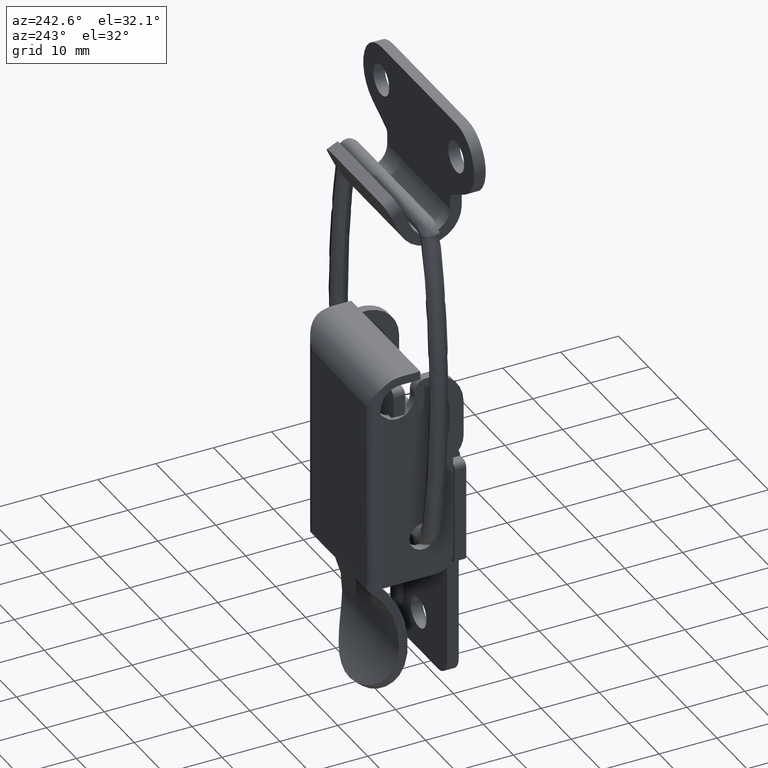
[diagram: clean part render]
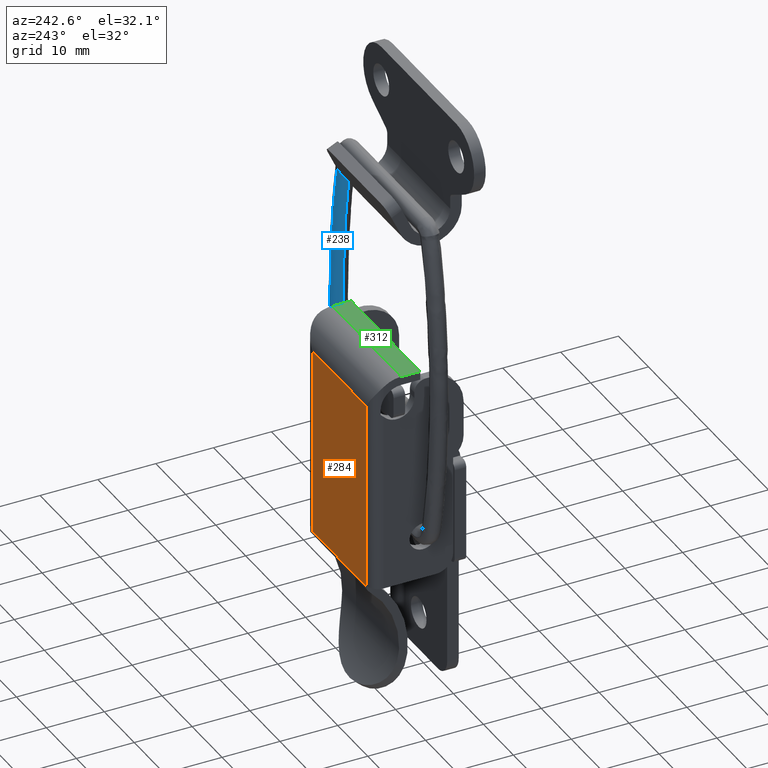
[diagram: same view with three faces highlighted in distinct colors, each labeled with its STEP entity id]
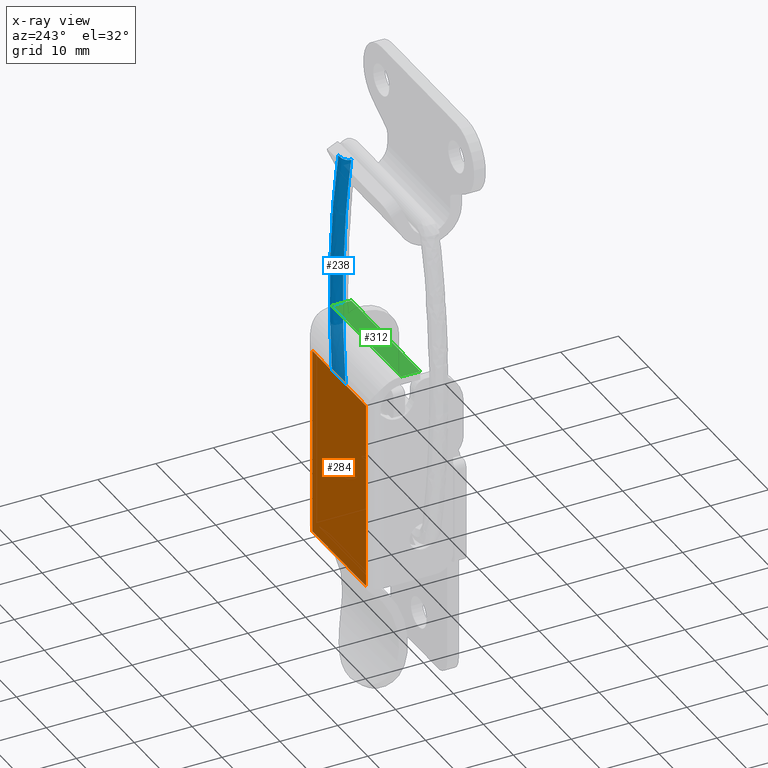
[diagram: x-ray of the same camera — body ghosted, the three highlighted faces saturated]
A machine part, auxiliary view with three faces highlighted in distinct colors.
The next image is the same camera in x-ray (body ghosted, the three faces saturated) — at least one of them is partly hidden behind the body in this view.
Their STEP definitions:

[orange] entity #284 — the highlighted planar face has unit normal (0, -1, 0).
#284=ADVANCED_FACE('',(#1319),#1318,.F.);
#1318=PLANE('',#2525);
#1319=FACE_OUTER_BOUND('',#2526,.T.);
#2522=CARTESIAN_POINT('',(8.79999999996E+00,1.20000000000E+00,-1.09420433278E+01));
#2523=DIRECTION('',(-1.00000000000E+00,0.00000000000E+00,0.00000000000E+00));
#2524=DIRECTION('',(0.00000000000E+00,0.00000000000E+00,1.00000000000E+00));
#2525=AXIS2_PLACEMENT_3D('',#2522,#2523,#2524);
#2526=EDGE_LOOP('',(#3270,#3271,#3272,#3273,#3274));
#3270=ORIENTED_EDGE('',*,*,#3787,.T.);
#3271=ORIENTED_EDGE('',*,*,#3788,.T.);
#3272=ORIENTED_EDGE('',*,*,#3781,.T.);
#3273=ORIENTED_EDGE('',*,*,#3789,.T.);
#3274=ORIENTED_EDGE('',*,*,#3790,.F.);
#3781=EDGE_CURVE('',#5632,#5633,#5634,.T.);
#3787=EDGE_CURVE('',#5674,#5675,#5676,.T.);
#3788=EDGE_CURVE('',#5675,#5632,#5682,.T.);
#3789=EDGE_CURVE('',#5633,#5688,#5689,.T.);
#3790=EDGE_CURVE('',#5674,#5688,#5695,.T.);
#5632=VERTEX_POINT('',#7612);
#5633=VERTEX_POINT('',#7613);
#5634=LINE('',#7614,#7615);
#5674=VERTEX_POINT('',#7664);
#5675=VERTEX_POINT('',#7665);
#5676=LINE('',#7666,#7667);
#5682=LINE('',#7669,#7670);
#5688=VERTEX_POINT('',#7672);
#5689=LINE('',#7673,#7674);
#5695=LINE('',#7676,#7677);
#7612=CARTESIAN_POINT('',(8.79999999996E+00,2.10000000000E+01,2.50000000000E+01));
#7613=CARTESIAN_POINT('',(8.79999999996E+00,3.00000000000E+00,2.50000000000E+01));
#7614=CARTESIAN_POINT('',(8.79999999996E+00,2.10000000000E+01,2.50000000000E+01));
#7615=VECTOR('',#7616,1.80000000000E+01);
#7616=DIRECTION('',(0.00000000000E+00,-1.00000000000E+00,0.00000000000E+00));
#7664=CARTESIAN_POINT('',(8.79999999997E+00,2.10000000000E+01,-7.67458484350E+00));
#7665=CARTESIAN_POINT('',(8.79999999997E+00,2.10000000000E+01,-7.50000000000E+00));
#7666=CARTESIAN_POINT('',(8.79999999997E+00,2.10000000000E+01,-7.67458484350E+00));
#7667=VECTOR('',#7668,1.74584843497E-01);
#7668=DIRECTION('',(0.00000000000E+00,0.00000000000E+00,1.00000000000E+00));
#7669=CARTESIAN_POINT('',(8.79999999996E+00,2.10000000000E+01,-7.50000000000E+00));
#7670=VECTOR('',#7671,3.25000000000E+01);
#7671=DIRECTION('',(0.00000000000E+00,0.00000000000E+00,1.00000000000E+00));
#7672=CARTESIAN_POINT('',(8.79999999996E+00,3.00000000000E+00,-7.67458484350E+00));
#7673=CARTESIAN_POINT('',(8.79999999996E+00,3.00000000000E+00,2.50000000000E+01));
#7674=VECTOR('',#7675,3.26745848435E+01);
#7675=DIRECTION('',(0.00000000000E+00,0.00000000000E+00,-1.00000000000E+00));
#7676=CARTESIAN_POINT('',(8.79999999996E+00,2.10000000000E+01,-7.67458484350E+00));
#7677=VECTOR('',#7678,1.80000000000E+01);
#7678=DIRECTION('',(0.00000000000E+00,-1.00000000000E+00,0.00000000000E+00));

[blue] entity #238 — the highlighted face is a freeform B-spline surface patch.
#238=ADVANCED_FACE('',(#853),#852,.T.);
#852=( BOUNDED_SURFACE() B_SPLINE_SURFACE( 2,2,((#2259,#2260,#2261),(#2262,#2263,#2264),(#2265,#2266,#2267),(#2268,#2269,#2270),(#2271,#2272,#2273)), .UNSPECIFIED.,.F.,.F.,.F.) B_SPLINE_SURFACE_WITH_KNOTS((3,2,3),(3,3),(1.55711403142E+00,1.57079632679E+00,3.14159265359E+00),(7.82524256236E-03,4.03991958974E-01), .UNSPECIFIED. ) GEOMETRIC_REPRESENTATION_ITEM() RATIONAL_B_SPLINE_SURFACE(((9.94160080823E-01,9.74751292880E-01,9.94243894329E-01),(9.96664889201E-01,9.77207200387E-01,9.96748913878E-01),(9.99214107096E-01,9.79706650412E-01,9.99298346686E-01),(7.06551070985E-01,6.92757216080E-01,7.06610637370E-01),(9.99214107096E-01,9.79706650412E-01,9.99298346686E-01))) REPRESENTATION_ITEM('') SURFACE() );
#853=FACE_OUTER_BOUND('',#2274,.T.);
#2259=CARTESIAN_POINT('',(1.44095521245E+01,2.99988561432E+00,-5.35574691765E+01));
#2260=CARTESIAN_POINT('',(1.93888249582E+01,2.99988561432E+00,-2.74588729626E+01));
#2261=CARTESIAN_POINT('',(1.39088284410E+01,2.99988561432E+00,-1.46080533325E+00));
#2262=CARTESIAN_POINT('',(1.44004545004E+01,3.00000000000E+00,-5.35557334681E+01));
#2263=CARTESIAN_POINT('',(1.93793788618E+01,3.00000000000E+00,-2.74589637532E+01));
#2264=CARTESIAN_POINT('',(1.38997658599E+01,3.00000000000E+00,-1.46271558728E+00));
#2265=CARTESIAN_POINT('',(1.43913561825E+01,3.00000000000E+00,-5.35539976274E+01));
#2266=CARTESIAN_POINT('',(1.93699320450E+01,3.00000000000E+00,-2.74590545506E+01));
#2267=CARTESIAN_POINT('',(1.38907025875E+01,3.00000000000E+00,-1.46462598698E+00));
#2268=CARTESIAN_POINT('',(1.29179325740E+01,3.00000000000E+00,-5.32728875598E+01));
#2269=CARTESIAN_POINT('',(1.78400709280E+01,3.00000000000E+00,-2.74737587109E+01));
#2270=CARTESIAN_POINT('',(1.24229544257E+01,3.00000000000E+00,-1.77400493504E+00));
#2271=CARTESIAN_POINT('',(1.29179325740E+01,1.50000000000E+00,-5.32728875598E+01));
#2272=CARTESIAN_POINT('',(1.78400709280E+01,1.50000000000E+00,-2.74737587109E+01));
#2273=CARTESIAN_POINT('',(1.24229544257E+01,1.50000000000E+00,-1.77400493504E+00));
#2274=EDGE_LOOP('',(#3010,#3011,#3012,#3013));
#3010=ORIENTED_EDGE('',*,*,#3664,.F.);
#3011=ORIENTED_EDGE('',*,*,#3610,.T.);
#3012=ORIENTED_EDGE('',*,*,#3663,.F.);
#3013=ORIENTED_EDGE('',*,*,#3637,.T.);
#3610=EDGE_CURVE('',#4505,#4498,#4506,.T.);
#3637=EDGE_CURVE('',#4586,#4680,#4687,.T.);
#3663=EDGE_CURVE('',#4586,#4498,#4849,.T.);
#3664=EDGE_CURVE('',#4505,#4680,#4855,.T.);
#4498=VERTEX_POINT('',#6888);
#4505=VERTEX_POINT('',#6893);
#4506=CIRCLE('',#6897,1.32324072902E+02);
#4586=VERTEX_POINT('',#6949);
#4680=VERTEX_POINT('',#7015);
#4687=(BOUNDED_CURVE() B_SPLINE_CURVE(2,(#7030,#7031,#7032),.UNSPECIFIED.,.F.,.F.) B_SPLINE_CURVE_WITH_KNOTS((3,3),(7.82525370672E-03,4.02433766142E-01),.UNSPECIFIED.) CURVE() GEOMETRIC_REPRESENTATION_ITEM() RATIONAL_B_SPLINE_CURVE((9.99214105998E-01,9.79783377190E-01,9.99144836424E-01)) REPRESENTATION_ITEM('') );
#4849=CIRCLE('',#7142,1.50000000000E+00);
#4855=(BOUNDED_CURVE() B_SPLINE_CURVE(3,(#7143,#7144,#7145,#7146,#7147,#7148,#7149,#7150,#7151,#7152,#7153,#7154),.UNSPECIFIED.,.F.,.F.) B_SPLINE_CURVE_WITH_KNOTS((4,2,2,2,2,4),(-2.35171896165E-03,-2.05771877251E-03,-1.76371858338E-03,-1.46971839424E-03,-1.17571820510E-03,-6.23537722950E-12),.UNSPECIFIED.) CURVE() GEOMETRIC_REPRESENTATION_ITEM() RATIONAL_B_SPLINE_CURVE((1.00000000000E+00,1.00000000000E+00,1.00000000000E+00,1.00000000000E+00,1.00000000000E+00,1.00000000000E+00,1.00000000000E+00,1.00000000000E+00,1.00000000000E+00,1.00000000000E+00,1.00000000000E+00,1.00000000000E+00)) REPRESENTATION_ITEM('') );
#6888=CARTESIAN_POINT('',(1.43913555420E+01,3.00000000000E+00,-5.35540019750E+01));
#6893=CARTESIAN_POINT('',(1.38910221067E+01,3.00000000000E+00,-1.46455810874E+00));
#6894=CARTESIAN_POINT('',(-1.15588211905E+02,3.00000000000E+00,-2.87553666171E+01));
#6895=DIRECTION('',(-0.00000000000E+00,1.00000000000E+00,0.00000000000E+00));
#6896=DIRECTION('',(-0.00000000000E+00,-0.00000000000E+00,-1.00000000000E+00));
#6897=AXIS2_PLACEMENT_3D('',#6894,#6895,#6896);
#6949=CARTESIAN_POINT('',(1.29179328452E+01,1.50000000037E+00,-5.32728861384E+01));
#7015=CARTESIAN_POINT('',(1.24645816482E+01,1.49999999953E+00,-1.97225220524E+00));
#7030=CARTESIAN_POINT('',(1.29179328455E+01,1.50000000000E+00,-5.32728861366E+01));
#7031=CARTESIAN_POINT('',(1.78203272110E+01,1.50000000000E+00,-2.75772428171E+01));
#7032=CARTESIAN_POINT('',(1.24645816422E+01,1.50000000000E+00,-1.97225218013E+00));
#7139=CARTESIAN_POINT('',(1.43913564567E+01,1.50000000000E+00,-5.35539961897E+01));
#7140=DIRECTION('',(-1.87406700868E-01,0.00000000000E+00,-9.82282407696E-01));
#7141=DIRECTION('',(9.82282407696E-01,-0.00000000000E+00,-1.87406700868E-01));
#7142=AXIS2_PLACEMENT_3D('',#7139,#7140,#7141);
#7143=CARTESIAN_POINT('',(1.38907025875E+01,3.00000000000E+00,-1.46462598697E+00));
#7144=CARTESIAN_POINT('',(1.37976009655E+01,3.00000000000E+00,-1.49522643929E+00));
#7145=CARTESIAN_POINT('',(1.37018117363E+01,2.99013639449E+00,-1.52701379623E+00));
#7146=CARTESIAN_POINT('',(1.35185103372E+01,2.95178364432E+00,-1.58864518507E+00));
#7147=CARTESIAN_POINT('',(1.34296544057E+01,2.92348978041E+00,-1.61890537524E+00));
#7148=CARTESIAN_POINT('',(1.32575117387E+01,2.84875842833E+00,-1.67834278385E+00));
#7149=CARTESIAN_POINT('',(1.31739601577E+01,2.80187698973E+00,-1.70762576198E+00));
#7150=CARTESIAN_POINT('',(1.30196534267E+01,2.69358379898E+00,-1.76251894238E+00));
#7151=CARTESIAN_POINT('',(1.29479265834E+01,2.63185816395E+00,-1.78846221289E+00));
#7152=CARTESIAN_POINT('',(1.26170675746E+01,2.28419959699E+00,-1.90996208517E+00));
#7153=CARTESIAN_POINT('',(1.24645099618E+01,1.89759783896E+00,-1.97228092694E+00));
#7154=CARTESIAN_POINT('',(1.24645816562E+01,1.49980880202E+00,-1.97225220223E+00));

[green] entity #312 — the highlighted planar face has unit normal (0, 0, -1).
#312=ADVANCED_FACE('',(#1603),#1602,.F.);
#1602=PLANE('',#2669);
#1603=FACE_OUTER_BOUND('',#2670,.T.);
#2666=CARTESIAN_POINT('',(4.12999999997E+00,-2.30000000000E+00,3.00000000000E+01));
#2667=DIRECTION('',(0.00000000000E+00,0.00000000000E+00,-1.00000000000E+00));
#2668=DIRECTION('',(-1.00000000000E+00,0.00000000000E+00,0.00000000000E+00));
#2669=AXIS2_PLACEMENT_3D('',#2666,#2667,#2668);
#2670=EDGE_LOOP('',(#3447,#3448,#3449,#3450));
#3447=ORIENTED_EDGE('',*,*,#3815,.T.);
#3448=ORIENTED_EDGE('',*,*,#3784,.F.);
#3449=ORIENTED_EDGE('',*,*,#3847,.T.);
#3450=ORIENTED_EDGE('',*,*,#3896,.T.);
#3784=EDGE_CURVE('',#5647,#5654,#5655,.T.);
#3815=EDGE_CURVE('',#5864,#5654,#5865,.T.);
#3847=EDGE_CURVE('',#5647,#6077,#6084,.T.);
#3896=EDGE_CURVE('',#6077,#5864,#6408,.T.);
#5647=VERTEX_POINT('',#7632);
#5654=VERTEX_POINT('',#7637);
#5655=LINE('',#7638,#7639);
#5864=VERTEX_POINT('',#7795);
#5865=LINE('',#7796,#7797);
#6077=VERTEX_POINT('',#7928);
#6084=LINE('',#7932,#7933);
#6408=LINE('',#8222,#8223);
#7632=CARTESIAN_POINT('',(3.79999999997E+00,2.30000000000E+01,3.00000000000E+01));
#7637=CARTESIAN_POINT('',(3.79999999996E+00,0.00000000000E+00,3.00000000000E+01));
#7638=CARTESIAN_POINT('',(3.79999999996E+00,2.30000000000E+01,3.00000000000E+01));
#7639=VECTOR('',#7640,2.30000000000E+01);
#7640=DIRECTION('',(0.00000000000E+00,-1.00000000000E+00,0.00000000000E+00));
#7795=CARTESIAN_POINT('',(4.99999999964E-01,0.00000000000E+00,3.00000000000E+01));
#7796=CARTESIAN_POINT('',(4.99999999964E-01,0.00000000000E+00,3.00000000000E+01));
#7797=VECTOR('',#7798,3.30000000000E+00);
#7798=DIRECTION('',(1.00000000000E+00,0.00000000000E+00,0.00000000000E+00));
#7928=CARTESIAN_POINT('',(4.99999999964E-01,2.30000000000E+01,3.00000000000E+01));
#7932=CARTESIAN_POINT('',(3.79999999997E+00,2.30000000000E+01,3.00000000000E+01));
#7933=VECTOR('',#7934,3.30000000000E+00);
#7934=DIRECTION('',(-1.00000000000E+00,0.00000000000E+00,-1.07657990267E-15));
#8222=CARTESIAN_POINT('',(4.99999999964E-01,2.30000000000E+01,3.00000000000E+01));
#8223=VECTOR('',#8224,2.30000000000E+01);
#8224=DIRECTION('',(0.00000000000E+00,-1.00000000000E+00,0.00000000000E+00));